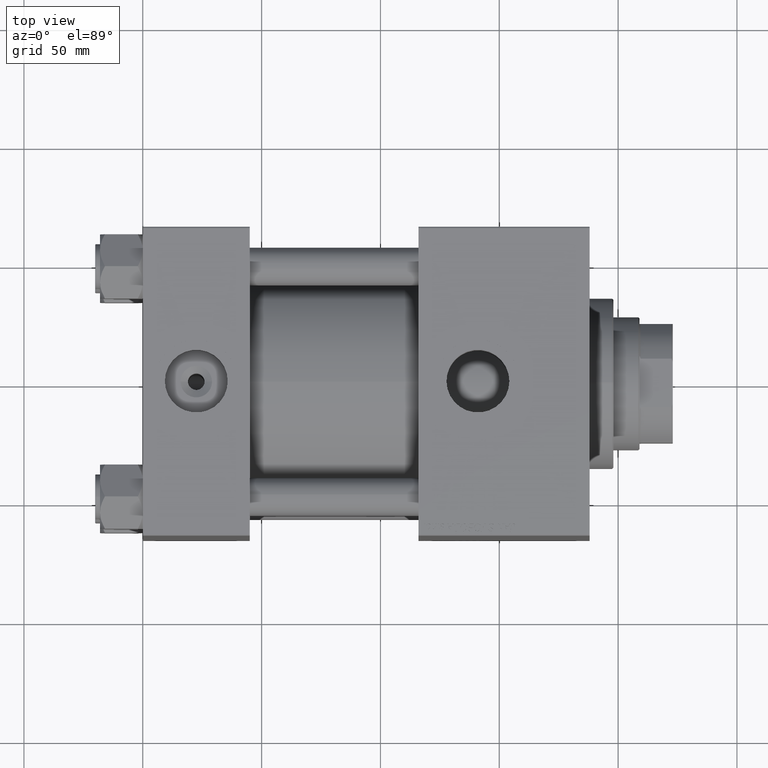
[diagram: clean part render]
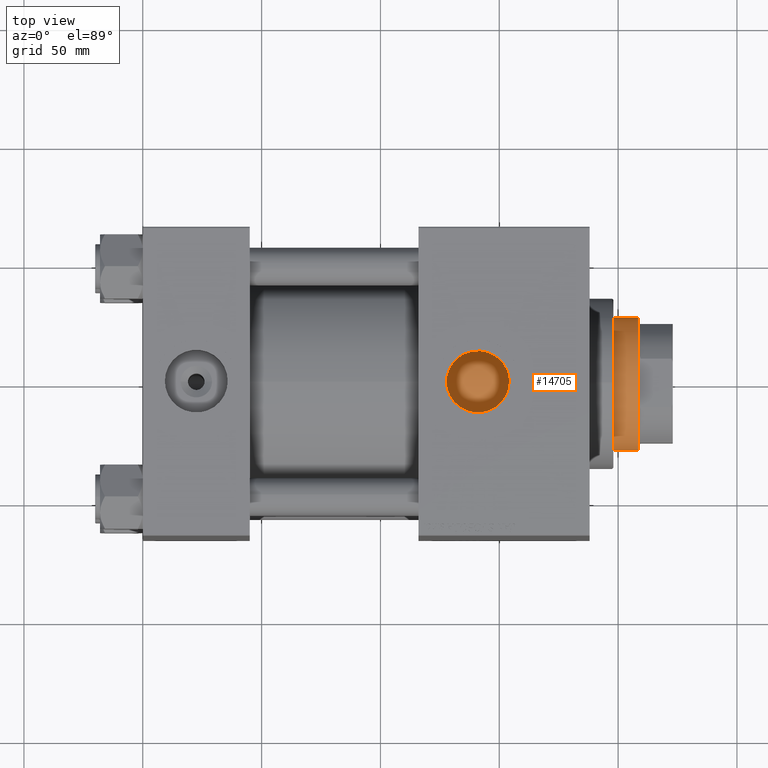
[diagram: same view with one face highlighted and labeled with its STEP entity id]
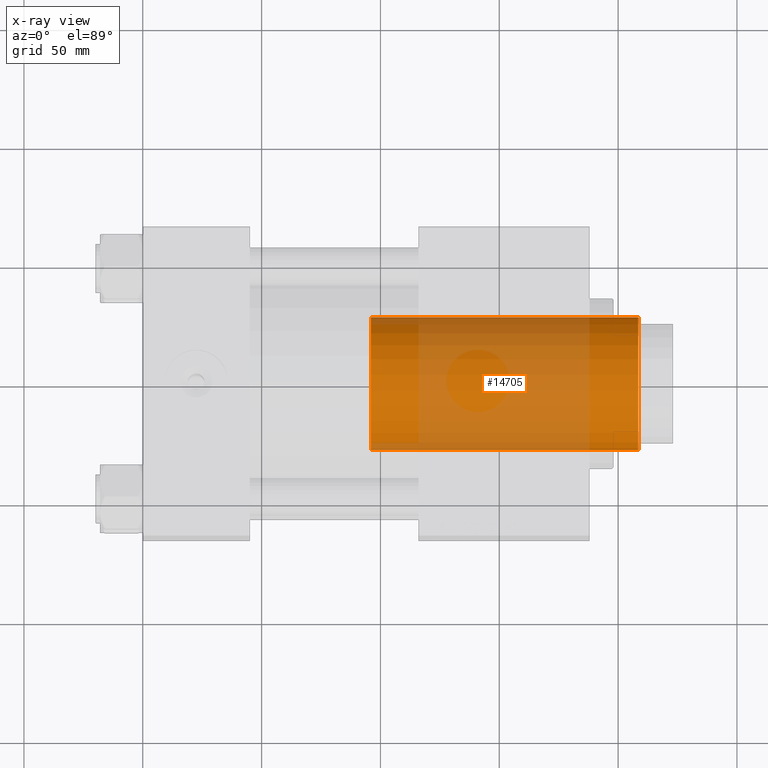
[diagram: x-ray of the same camera — body ghosted, the highlighted face saturated]
A machine part, top view. The second image highlights one B-rep face of the part: STEP entity #14705.
The next image is the same camera in x-ray: the body ghosted, the highlighted face saturated — about 57% of this face is hidden behind the body in this view.
In plain terms, the highlighted cylindrical surface (partial cylindrical patch) has radius 28 mm, axis along (-1, 0, 0).
Its self-contained STEP definition (entity closure, byte-faithful):
#1054 = VERTEX_POINT ( 'NONE', #36782 ) ;
#1448 = ORIENTED_EDGE ( 'NONE', *, *, #42602, .F. ) ;
#3190 = DIRECTION ( 'NONE',  ( -0.000000000000000000, -0.000000000000000000, -1.000000000000000000 ) ) ;
#4710 = CARTESIAN_POINT ( 'NONE',  ( 28.00000000000000000, 3.429011037612589276E-15, 163.5000000000000000 ) ) ;
#5877 = AXIS2_PLACEMENT_3D ( 'NONE', #8079, #51613, #15307 ) ;
#7746 = EDGE_CURVE ( 'NONE', #36966, #42721, #36360, .T. ) ;
#8079 = CARTESIAN_POINT ( 'NONE',  ( 0.000000000000000000, 0.000000000000000000, 51.00000000000000000 ) ) ;
#8806 = DIRECTION ( 'NONE',  ( -1.000000000000000000, 0.000000000000000000, 0.000000000000000000 ) ) ;
#11438 = LINE ( 'NONE', #23655, #40292 ) ;
#12813 = CYLINDRICAL_SURFACE ( 'NONE', #23099, 28.00000000000000000 ) ;
#12937 = EDGE_LOOP ( 'NONE', ( #1448, #28590, #25448, #27083 ) ) ;
#13885 = DIRECTION ( 'NONE',  ( 0.000000000000000000, 0.000000000000000000, -1.000000000000000000 ) ) ;
#13948 = CARTESIAN_POINT ( 'NONE',  ( -28.00000000000000000, 0.000000000000000000, 51.00000000000000000 ) ) ;
#14705 = ADVANCED_FACE ( 'NONE', ( #24999 ), #12813, .T. ) ;
#15307 = DIRECTION ( 'NONE',  ( 1.000000000000000000, 0.000000000000000000, 0.000000000000000000 ) ) ;
#16646 = EDGE_CURVE ( 'NONE', #31996, #1054, #44286, .T. ) ;
#17442 = LINE ( 'NONE', #46044, #25049 ) ;
#18928 = AXIS2_PLACEMENT_3D ( 'NONE', #46209, #13885, #33511 ) ;
#20758 = DIRECTION ( 'NONE',  ( -0.000000000000000000, -0.000000000000000000, -1.000000000000000000 ) ) ;
#22674 = EDGE_CURVE ( 'NONE', #1054, #36966, #17442, .T. ) ;
#23099 = AXIS2_PLACEMENT_3D ( 'NONE', #37467, #20758, #8806 ) ;
#23655 = CARTESIAN_POINT ( 'NONE',  ( 28.00000000000000000, 3.429011037612589276E-15, 164.0000000000000000 ) ) ;
#24999 = FACE_OUTER_BOUND ( 'NONE', #12937, .T. ) ;
#25049 = VECTOR ( 'NONE', #25124, 1000.000000000000000 ) ;
#25124 = DIRECTION ( 'NONE',  ( -0.000000000000000000, -0.000000000000000000, -1.000000000000000000 ) ) ;
#25448 = ORIENTED_EDGE ( 'NONE', *, *, #22674, .T. ) ;
#27083 = ORIENTED_EDGE ( 'NONE', *, *, #7746, .T. ) ;
#28590 = ORIENTED_EDGE ( 'NONE', *, *, #16646, .T. ) ;
#31996 = VERTEX_POINT ( 'NONE', #4710 ) ;
#33511 = DIRECTION ( 'NONE',  ( 1.000000000000000000, 0.000000000000000000, 0.000000000000000000 ) ) ;
#36360 = CIRCLE ( 'NONE', #5877, 28.00000000000000000 ) ;
#36782 = CARTESIAN_POINT ( 'NONE',  ( -28.00000000000000000, 0.000000000000000000, 163.5000000000000000 ) ) ;
#36966 = VERTEX_POINT ( 'NONE', #13948 ) ;
#37467 = CARTESIAN_POINT ( 'NONE',  ( 0.000000000000000000, 0.000000000000000000, 164.0000000000000000 ) ) ;
#40292 = VECTOR ( 'NONE', #3190, 1000.000000000000000 ) ;
#42602 = EDGE_CURVE ( 'NONE', #31996, #42721, #11438, .T. ) ;
#42721 = VERTEX_POINT ( 'NONE', #43509 ) ;
#43509 = CARTESIAN_POINT ( 'NONE',  ( 28.00000000000000000, 3.429011037612589276E-15, 51.00000000000000000 ) ) ;
#44286 = CIRCLE ( 'NONE', #18928, 28.00000000000000000 ) ;
#46044 = CARTESIAN_POINT ( 'NONE',  ( -28.00000000000000000, 0.000000000000000000, 164.0000000000000000 ) ) ;
#46209 = CARTESIAN_POINT ( 'NONE',  ( 0.000000000000000000, 0.000000000000000000, 163.5000000000000000 ) ) ;
#51613 = DIRECTION ( 'NONE',  ( 0.000000000000000000, 0.000000000000000000, 1.000000000000000000 ) ) ;